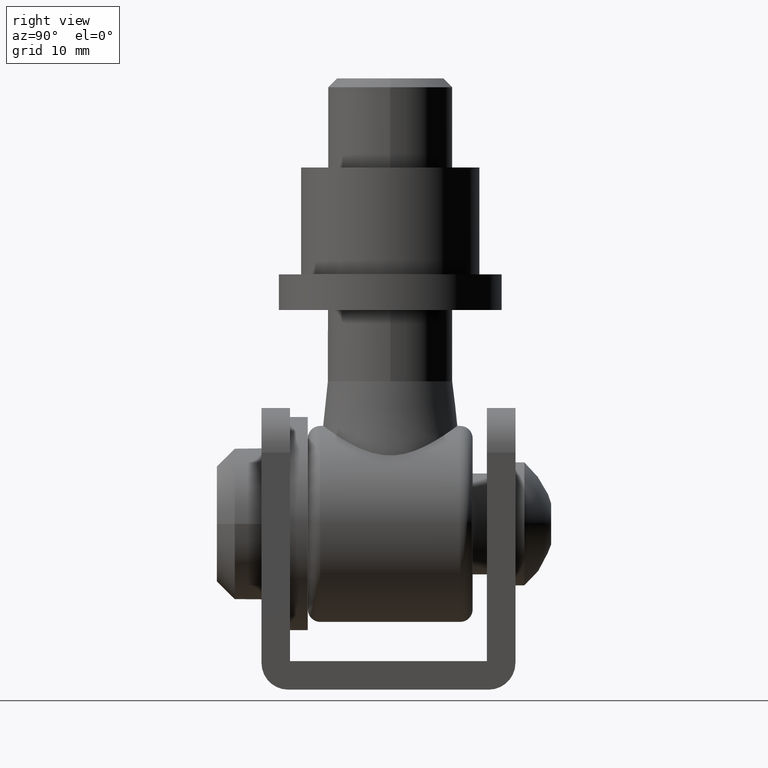
[diagram: clean part render]
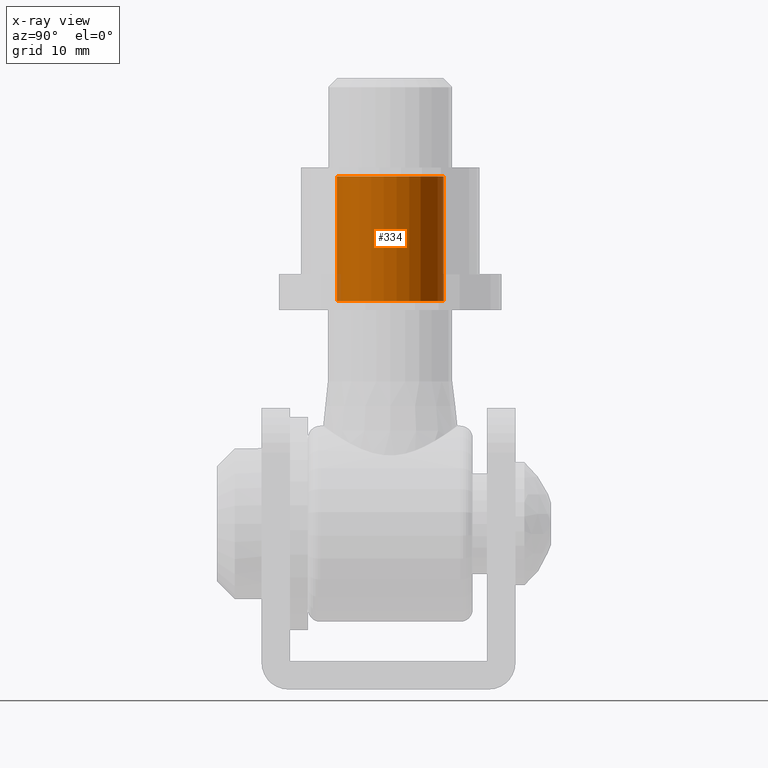
[diagram: x-ray — body ghosted, one internal face saturated and labeled with its STEP entity id]
A machine part, right view, then the same camera in x-ray: the body is ghosted and one INTERNAL B-rep face — a face not visible from any outside direction — is saturated and labeled: STEP entity #334.
In plain terms, the highlighted cylindrical surface (bore or boss wall) has radius 6 mm, axis along (0, 0, 1).
Its self-contained STEP definition (entity closure, byte-faithful):
#334 = ADVANCED_FACE ( 'NONE', ( #12928, #1133 ), #8957, .F. ) ;
#364 = ORIENTED_EDGE ( 'NONE', *, *, #11547, .T. ) ;
#906 = ORIENTED_EDGE ( 'NONE', *, *, #11863, .T. ) ;
#1133 = FACE_OUTER_BOUND ( 'NONE', #9233, .T. ) ;
#1211 = DIRECTION ( 'NONE',  ( 0.0000000000000000000, 0.0000000000000000000, -1.000000000000000000 ) ) ;
#2353 = DIRECTION ( 'NONE',  ( 0.0000000000000000000, -1.000000000000000000, 0.0000000000000000000 ) ) ;
#2720 = DIRECTION ( 'NONE',  ( 0.0000000000000000000, 1.000000000000000000, 0.0000000000000000000 ) ) ;
#3331 = VERTEX_POINT ( 'NONE', #11517 ) ;
#4595 = EDGE_LOOP ( 'NONE', ( #364 ) ) ;
#4652 = CARTESIAN_POINT ( 'NONE',  ( 0.0000000000000000000, 15.00000000000000000, 0.0000000000000000000 ) ) ;
#4919 = CIRCLE ( 'NONE', #7227, 5.999999999999996400 ) ;
#5363 = VERTEX_POINT ( 'NONE', #9533 ) ;
#5866 = CIRCLE ( 'NONE', #6985, 5.999999999999996400 ) ;
#6985 = AXIS2_PLACEMENT_3D ( 'NONE', #12283, #2353, #1211 ) ;
#7227 = AXIS2_PLACEMENT_3D ( 'NONE', #4652, #2720, #11666 ) ;
#8957 = CYLINDRICAL_SURFACE ( 'NONE', #10203, 5.999999999999996400 ) ;
#9233 = EDGE_LOOP ( 'NONE', ( #906 ) ) ;
#9533 = CARTESIAN_POINT ( 'NONE',  ( 0.0000000000000000000, 15.00000000000000000, 5.999999999999996400 ) ) ;
#9775 = CARTESIAN_POINT ( 'NONE',  ( 0.0000000000000000000, 16.00000000000000000, 0.0000000000000000000 ) ) ;
#10203 = AXIS2_PLACEMENT_3D ( 'NONE', #9775, #10784, #11818 ) ;
#10784 = DIRECTION ( 'NONE',  ( 0.0000000000000000000, 1.000000000000000000, 0.0000000000000000000 ) ) ;
#11517 = CARTESIAN_POINT ( 'NONE',  ( 0.0000000000000000000, 1.000000000000000900, -5.999999999999996400 ) ) ;
#11547 = EDGE_CURVE ( 'NONE', #5363, #5363, #4919, .T. ) ;
#11666 = DIRECTION ( 'NONE',  ( 0.0000000000000000000, 0.0000000000000000000, 1.000000000000000000 ) ) ;
#11818 = DIRECTION ( 'NONE',  ( 0.0000000000000000000, 0.0000000000000000000, 1.000000000000000000 ) ) ;
#11863 = EDGE_CURVE ( 'NONE', #3331, #3331, #5866, .T. ) ;
#12283 = CARTESIAN_POINT ( 'NONE',  ( 0.0000000000000000000, 1.000000000000000900, 0.0000000000000000000 ) ) ;
#12928 = FACE_OUTER_BOUND ( 'NONE', #4595, .T. ) ;